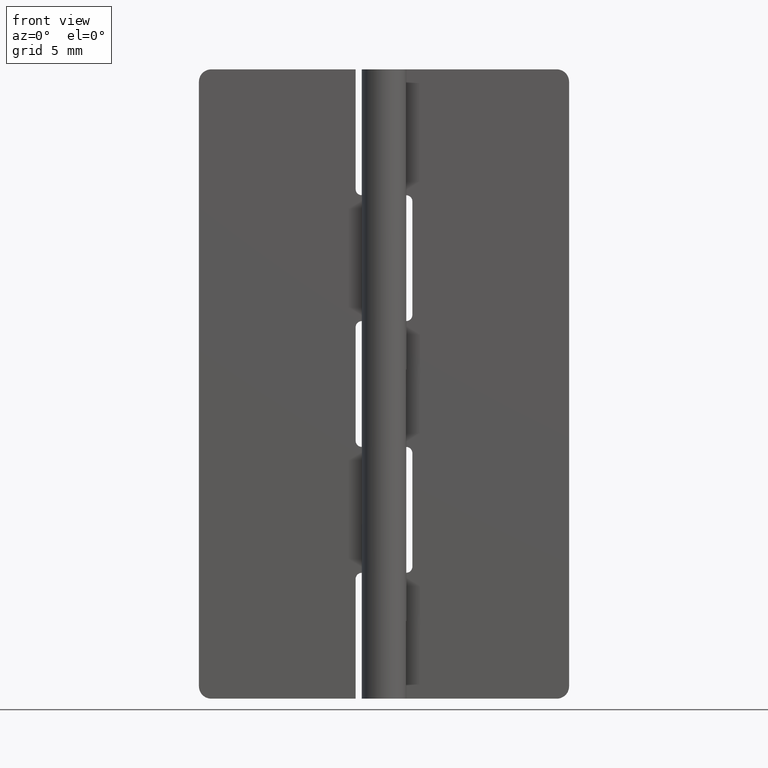
[diagram: clean part render]
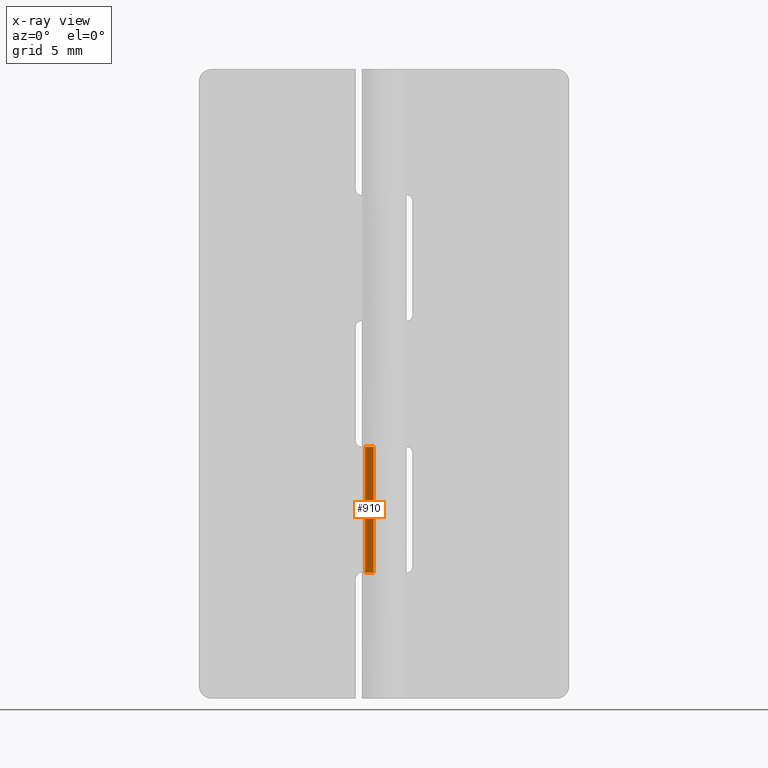
[diagram: x-ray — body ghosted, one internal face saturated and labeled with its STEP entity id]
A machine part, front view, then the same camera in x-ray: the body is ghosted and one INTERNAL B-rep face — a face not visible from any outside direction — is saturated and labeled: STEP entity #910.
In plain terms, the highlighted face is a freeform B-spline surface patch.
Its self-contained STEP definition (entity closure, byte-faithful):
#432=CARTESIAN_POINT('',(-0.849382491745595,0.527777777777774,20.399986999999999));
#433=VERTEX_POINT('',#432);
#453=CARTESIAN_POINT('',(-1.528888485142070,0.950000000000000,20.399986999999999));
#454=VERTEX_POINT('',#453);
#455=CARTESIAN_POINT('',(-0.849382491745595,0.527777777777774,20.399986999999999));
#456=CARTESIAN_POINT('',(-1.528888485142070,0.950000000000000,20.399986999999999));
#457=QUASI_UNIFORM_CURVE('',1,(#455,#456),.UNSPECIFIED.,.F.,.U.);
#458=EDGE_CURVE('',#433,#454,#457,.T.);
#592=CARTESIAN_POINT('',(-1.528888485142070,0.950000000000000,10.199996999999961));
#593=VERTEX_POINT('',#592);
#613=CARTESIAN_POINT('',(-0.849382491745595,0.527777777777774,10.199996999999961));
#614=VERTEX_POINT('',#613);
#615=CARTESIAN_POINT('',(-1.528888485142070,0.950000000000000,10.199996999999961));
#616=CARTESIAN_POINT('',(-0.849382491745595,0.527777777777774,10.199996999999961));
#617=QUASI_UNIFORM_CURVE('',1,(#615,#616),.UNSPECIFIED.,.F.,.U.);
#618=EDGE_CURVE('',#593,#614,#617,.T.);
#884=CARTESIAN_POINT('',(-0.849382491745595,0.527777777777774,20.399986999999999));
#885=CARTESIAN_POINT('',(-0.849382491745595,0.527777777777774,10.199996999999961));
#886=QUASI_UNIFORM_CURVE('',1,(#884,#885),.UNSPECIFIED.,.F.,.U.);
#887=EDGE_CURVE('',#433,#614,#886,.T.);
#895=CARTESIAN_POINT('',(-0.815441196634989,0.506687795958683,9.690507459960834));
#896=CARTESIAN_POINT('',(-1.562829774177416,0.971089978044136,9.690507459960834));
#897=CARTESIAN_POINT('',(-0.815441196634989,0.506687795958683,20.909475992869030));
#898=CARTESIAN_POINT('',(-1.562829774177416,0.971089978044136,20.909475992869030));
#899=B_SPLINE_SURFACE_WITH_KNOTS('',1,1,((#895,#897),(#896,#898)),.UNSPECIFIED.,.F.,.F.,.U.,(2,2),(2,2),(0.041708369216695,0.958291623332724),(0.0,11.218968532908191),.UNSPECIFIED.);
#900=ORIENTED_EDGE('',*,*,#458,.F.);
#901=ORIENTED_EDGE('',*,*,#887,.T.);
#902=ORIENTED_EDGE('',*,*,#618,.F.);
#903=CARTESIAN_POINT('',(-1.528888485142070,0.950000000000000,20.399986999999999));
#904=CARTESIAN_POINT('',(-1.528888485142070,0.950000000000000,10.199996999999961));
#905=QUASI_UNIFORM_CURVE('',1,(#903,#904),.UNSPECIFIED.,.F.,.U.);
#906=EDGE_CURVE('',#454,#593,#905,.T.);
#907=ORIENTED_EDGE('',*,*,#906,.F.);
#908=EDGE_LOOP('',(#900,#901,#902,#907));
#909=FACE_OUTER_BOUND('',#908,.T.);
#910=ADVANCED_FACE('',(#909),#899,.T.);